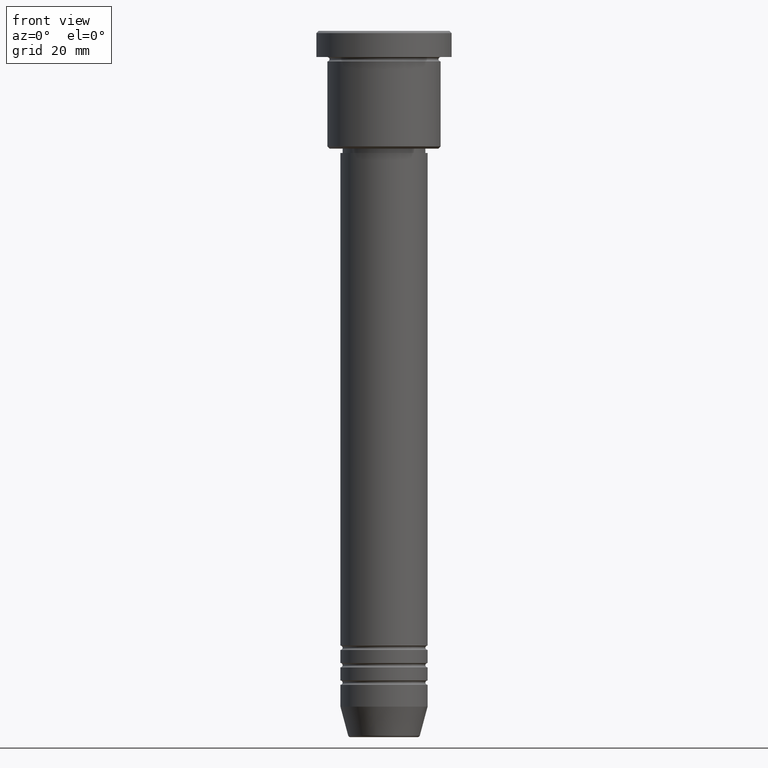
[diagram: clean part render]
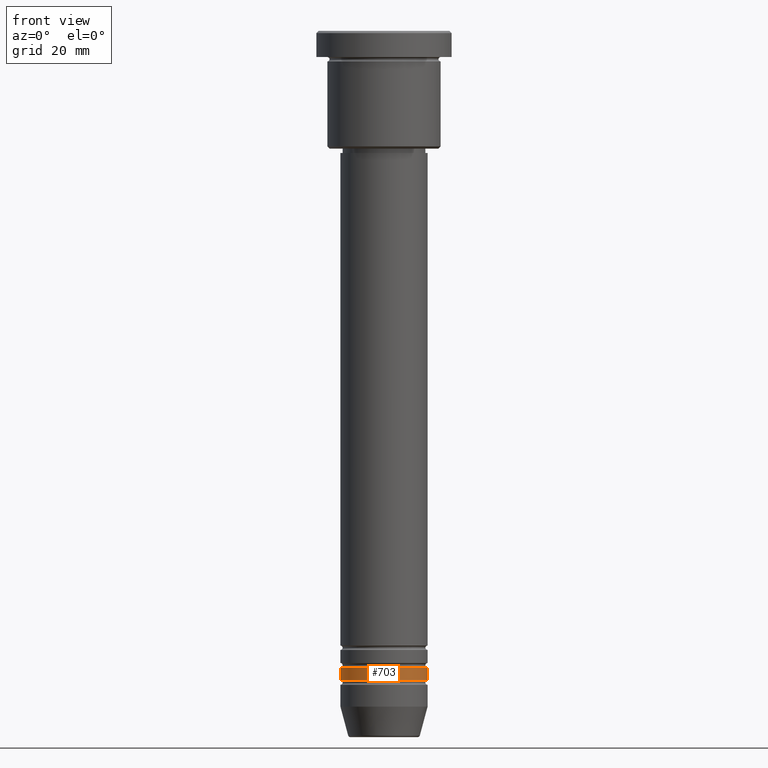
[diagram: same view with one face highlighted and labeled with its STEP entity id]
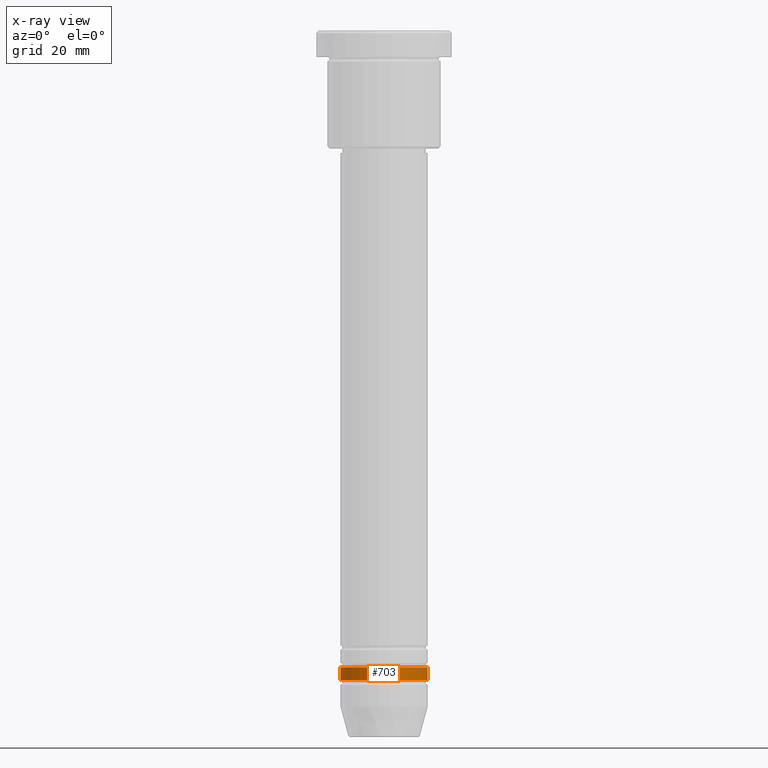
[diagram: x-ray of the same camera — body ghosted, the highlighted face saturated]
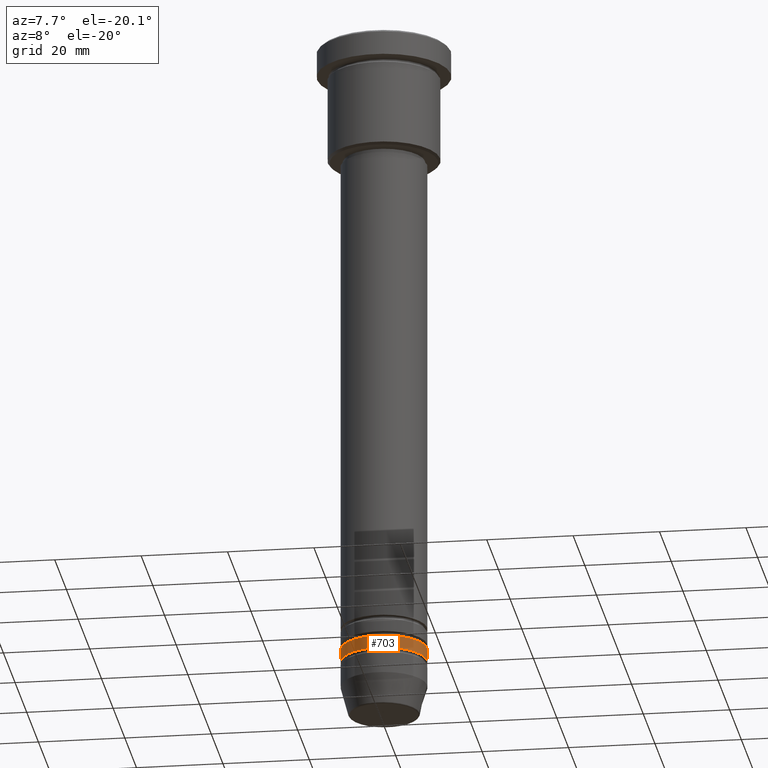
[diagram: same view with one face highlighted and labeled with its STEP entity id]
A machine part, front view. The second image highlights one B-rep face of the part: STEP entity #703.
The next image is the same camera in x-ray: the body ghosted, the highlighted face saturated — about 0% of this face is hidden behind the body in this view.
A second angle (auxiliary view) of the same face is appended — the face is thin or edge-on in the first view.
In plain terms, the highlighted cylindrical surface (partial cylindrical patch) has radius 10 mm, axis along (-0, -0, 1).
Its self-contained STEP definition (entity closure, byte-faithful):
#16 = VERTEX_POINT ( 'NONE', #192 ) ;
#65 = CARTESIAN_POINT ( 'NONE',  ( 0.000000000000000000, 0.000000000000000000, -145.9999999999999147 ) ) ;
#100 = VERTEX_POINT ( 'NONE', #537 ) ;
#146 = CARTESIAN_POINT ( 'NONE',  ( 0.000000000000000000, 0.000000000000000000, -148.9999999999999147 ) ) ;
#159 = DIRECTION ( 'NONE',  ( -0.000000000000000000, -0.000000000000000000, 1.000000000000000000 ) ) ;
#192 = CARTESIAN_POINT ( 'NONE',  ( 10.00000000000000178, 0.000000000000000000, -148.9999999999999147 ) ) ;
#207 = LINE ( 'NONE', #686, #244 ) ;
#227 = AXIS2_PLACEMENT_3D ( 'NONE', #745, #1089, #378 ) ;
#244 = VECTOR ( 'NONE', #1121, 1000.000000000000000 ) ;
#293 = ORIENTED_EDGE ( 'NONE', *, *, #553, .T. ) ;
#365 = CYLINDRICAL_SURFACE ( 'NONE', #227, 10.00000000000000178 ) ;
#378 = DIRECTION ( 'NONE',  ( 1.000000000000000000, 0.000000000000000000, 0.000000000000000000 ) ) ;
#475 = EDGE_CURVE ( 'NONE', #16, #596, #691, .T. ) ;
#494 = ORIENTED_EDGE ( 'NONE', *, *, #856, .F. ) ;
#537 = CARTESIAN_POINT ( 'NONE',  ( -10.00000000000000178, 1.224646799147353454E-15, -148.9999999999999147 ) ) ;
#546 = AXIS2_PLACEMENT_3D ( 'NONE', #65, #159, #1078 ) ;
#553 = EDGE_CURVE ( 'NONE', #100, #16, #999, .T. ) ;
#586 = CIRCLE ( 'NONE', #546, 10.00000000000000000 ) ;
#589 = CARTESIAN_POINT ( 'NONE',  ( -10.00000000000000000, 1.224646799147353256E-15, -145.9999999999999147 ) ) ;
#596 = VERTEX_POINT ( 'NONE', #1171 ) ;
#650 = FACE_OUTER_BOUND ( 'NONE', #676, .T. ) ;
#674 = DIRECTION ( 'NONE',  ( -0.000000000000000000, -0.000000000000000000, 1.000000000000000000 ) ) ;
#676 = EDGE_LOOP ( 'NONE', ( #494, #293, #1036, #1082 ) ) ;
#686 = CARTESIAN_POINT ( 'NONE',  ( -10.00000000000000178, 1.224646799147353454E-15, 0.000000000000000000 ) ) ;
#691 = LINE ( 'NONE', #770, #985 ) ;
#703 = ADVANCED_FACE ( 'NONE', ( #650 ), #365, .T. ) ;
#745 = CARTESIAN_POINT ( 'NONE',  ( 0.000000000000000000, 0.000000000000000000, 0.000000000000000000 ) ) ;
#770 = CARTESIAN_POINT ( 'NONE',  ( 10.00000000000000178, 0.000000000000000000, 0.000000000000000000 ) ) ;
#812 = DIRECTION ( 'NONE',  ( -0.000000000000000000, -0.000000000000000000, 1.000000000000000000 ) ) ;
#856 = EDGE_CURVE ( 'NONE', #100, #957, #207, .T. ) ;
#888 = AXIS2_PLACEMENT_3D ( 'NONE', #146, #812, #1148 ) ;
#957 = VERTEX_POINT ( 'NONE', #589 ) ;
#985 = VECTOR ( 'NONE', #674, 1000.000000000000000 ) ;
#999 = CIRCLE ( 'NONE', #888, 10.00000000000000178 ) ;
#1028 = EDGE_CURVE ( 'NONE', #957, #596, #586, .T. ) ;
#1036 = ORIENTED_EDGE ( 'NONE', *, *, #475, .T. ) ;
#1078 = DIRECTION ( 'NONE',  ( 1.000000000000000000, 0.000000000000000000, 0.000000000000000000 ) ) ;
#1082 = ORIENTED_EDGE ( 'NONE', *, *, #1028, .F. ) ;
#1089 = DIRECTION ( 'NONE',  ( -0.000000000000000000, -0.000000000000000000, 1.000000000000000000 ) ) ;
#1121 = DIRECTION ( 'NONE',  ( -0.000000000000000000, -0.000000000000000000, 1.000000000000000000 ) ) ;
#1148 = DIRECTION ( 'NONE',  ( 1.000000000000000000, 0.000000000000000000, 0.000000000000000000 ) ) ;
#1171 = CARTESIAN_POINT ( 'NONE',  ( 10.00000000000000000, 0.000000000000000000, -145.9999999999999147 ) ) ;